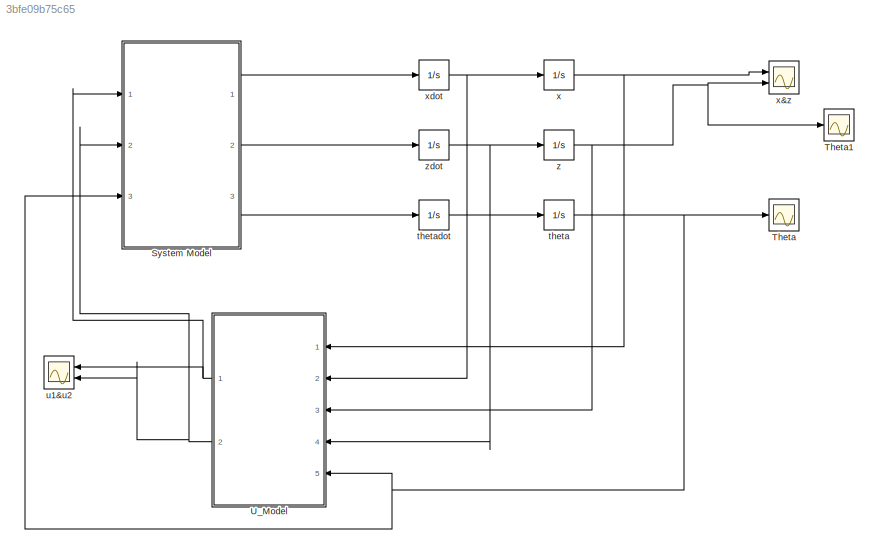
MODEL slx_3bfe09b75c65
KIND model
CONFIG AbsTol = auto
CONFIG EnableMultiTasking = off
CONFIG FixedStep = auto
CONFIG MaxStep = auto
CONFIG MinStep = auto
CONFIG RelTol = 1e-3
CONFIG SampleTimeConstraint = Unconstrained
CONFIG Solver = VariableStepAuto
CONFIG SolverName = VariableStepAuto
CONFIG StartTime = 0.0
CONFIG StopTime = 10.0
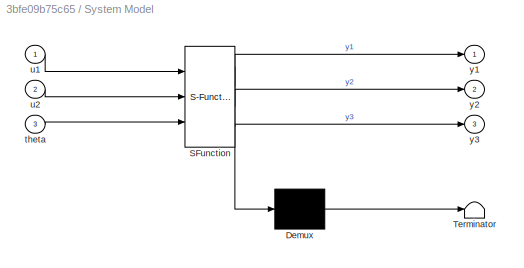
BLOCK [SubSystem] System Model
  ErrorFcn = Stateflow.Translate.translate
  PermitHierarchicalResolution = ExplicitOnly
  Ports = [3, 3]
  RequestExecContextInheritance = off
  SFBlockType = MATLAB Function
  TreatAsAtomicUnit = on
  Variant = off
BLOCK [Demux] System Model/ Demux 
  Outputs = 1
  Ports = [1, 1]
BLOCK [S-Function] System Model/ SFunction 
  EnableBusSupport = on
  FunctionName = sf_sfun
  PortCounts = [3 4]
  Ports = [3, 4]
  SFcnIsStateOwnerBlock = off
  SFunctionDeploymentMode = off
  Tag = Stateflow S-Function NOLCOLab2Q1 2
BLOCK [Terminator] System Model/ Terminator 
BLOCK [Inport] System Model/theta
  IconDisplay = Port number
  Port = 3
BLOCK [Inport] System Model/u1
  IconDisplay = Port number
BLOCK [Inport] System Model/u2
  IconDisplay = Port number
  Port = 2
BLOCK [Outport] System Model/y1
  IconDisplay = Port number
BLOCK [Outport] System Model/y2
  IconDisplay = Port number
  Port = 2
BLOCK [Outport] System Model/y3
  IconDisplay = Port number
  Port = 3
BLOCK [Scope] Theta
  NumInputPorts = 1
  Ports = [1]
  ScopeSpecificationString = Simulink.scopes.TimeScopeBlockCfg('CurrentConfiguration', extmgr.ConfigurationSet(extmgr.Configuration('Core','General UI',true),extmgr.Configuration('Core','Source UI',true),extmgr.Configuration('Sources','WiredSimulink',true,'DataLoggingVariableName','ScopeData2'),extmgr.Configuration('Visuals','Time Domain',true,'SerializedDisplays',{struct('MinYLimReal','-371.96106','MaxYLimReal','112.76702','...<+1424ch>
BLOCK [Scope] Theta1
  NumInputPorts = 1
  Ports = [1]
  ScopeSpecificationString = Simulink.scopes.TimeScopeBlockCfg('CurrentConfiguration', extmgr.ConfigurationSet(extmgr.Configuration('Core','General UI',true),extmgr.Configuration('Core','Source UI',true),extmgr.Configuration('Sources','WiredSimulink',true,'DataLoggingVariableName','ScopeData1'),extmgr.Configuration('Visuals','Time Domain',true,'SerializedDisplays',{struct('MinYLimReal','-5','MaxYLimReal','5','YLabelReal','','...<+1355ch>
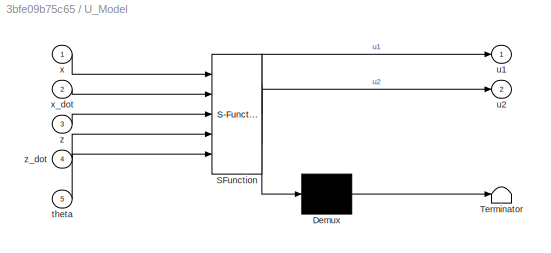
BLOCK [SubSystem] U_Model 
  ErrorFcn = Stateflow.Translate.translate
  PermitHierarchicalResolution = ExplicitOnly
  Ports = [5, 2]
  RequestExecContextInheritance = off
  SFBlockType = MATLAB Function
  TreatAsAtomicUnit = on
  Variant = off
BLOCK [Demux] U_Model / Demux 
  Outputs = 1
  Ports = [1, 1]
BLOCK [S-Function] U_Model / SFunction 
  EnableBusSupport = on
  FunctionName = sf_sfun
  PortCounts = [5 3]
  Ports = [5, 3]
  SFcnIsStateOwnerBlock = off
  SFunctionDeploymentMode = off
  Tag = Stateflow S-Function NOLCOLab2Q1 1
BLOCK [Terminator] U_Model / Terminator 
BLOCK [Inport] U_Model /theta
  IconDisplay = Port number
  Port = 5
BLOCK [Outport] U_Model /u1
  IconDisplay = Port number
BLOCK [Outport] U_Model /u2
  IconDisplay = Port number
  Port = 2
BLOCK [Inport] U_Model /x
  IconDisplay = Port number
BLOCK [Inport] U_Model /x_dot
  IconDisplay = Port number
  Port = 2
BLOCK [Inport] U_Model /z
  IconDisplay = Port number
  Port = 3
BLOCK [Inport] U_Model /z_dot
  IconDisplay = Port number
  Port = 4
BLOCK [Integrator] theta
  InitialCondition = pi/4
  Ports = [1, 1]
BLOCK [Integrator] thetadot
  Ports = [1, 1]
BLOCK [Scope] u1&u2
  NumInputPorts = 2
  Ports = [2]
  ScopeSpecificationString = Simulink.scopes.TimeScopeBlockCfg('CurrentConfiguration', extmgr.ConfigurationSet(extmgr.Configuration('Core','General UI',true),extmgr.Configuration('Core','Source UI',true),extmgr.Configuration('Sources','WiredSimulink',true,'DataLoggingVariableName','ScopeData1'),extmgr.Configuration('Visuals','Time Domain',true,'SerializedDisplays',{struct('MinYLimReal','-42562.42185','MaxYLimReal','36579.4738...<+1515ch>
BLOCK [Integrator] x
  InitialCondition = 1
  Ports = [1, 1]
BLOCK [Scope] x&z
  NumInputPorts = 2
  Ports = [2]
  ScopeSpecificationString = Simulink.scopes.TimeScopeBlockCfg('CurrentConfiguration', extmgr.ConfigurationSet(extmgr.Configuration('Core','General UI',true,'FigureColor',[0 0 0]),extmgr.Configuration('Core','Source UI',true),extmgr.Configuration('Sources','WiredSimulink',true),extmgr.Configuration('Visuals','Time Domain',true,'SerializedDisplays',{struct('MinYLimReal','-3.06699','MaxYLimReal','2.93301','YLabelReal','','MinYL...<+1640ch>
BLOCK [Integrator] xdot
  Ports = [1, 1]
BLOCK [Integrator] z
  InitialCondition = 1
  Ports = [1, 1]
BLOCK [Integrator] zdot
  Ports = [1, 1]
LINE System Model:1 -> xdot:1
LINE System Model:2 -> zdot:1
LINE System Model:3 -> thetadot:1
NET U_Model :1 -> System Model:1, u1&u2:1
NET U_Model :2 -> System Model:2, u1&u2:2
NET theta:1 -> System Model:3, Theta:1, U_Model :5
LINE thetadot:1 -> theta:1
NET x:1 -> U_Model :1, x&z:1
NET xdot:1 -> U_Model :2, x:1
NET z:1 -> Theta1:1, U_Model :3, x&z:2
NET zdot:1 -> U_Model :4, z:1
note: NET lines group one-source signal fan-out (src -> all destinations, sorted); 1:1 wires keep LINE
CHART U_Model  states=1 transitions=1
  STATE_LABEL 'eML_blk_kernel()'
  STATE_LABEL 'SCRIPT:\nfunction [u1,u2]= fcn(x,x_dot,z,z_dot,theta)\neps = 0.001;\n% a is decouple matrix \na = [-sin(theta) eps*cos(theta); cos(theta) eps*sin(theta)];\n% b = Gain(output) Matrix + alpha (constants) \nb = [0;1]+[-10*x_dot-25*x; -10*z_dot-25*z];\nu = (a^-1)*b; \nu1 = u(1);\nu2 = u(2);\n\nend'
CHART System Model states=1 transitions=1
  STATE_LABEL 'eML_blk_kernel()'
  STATE_LABEL 'SCRIPT:\nfunction [y1,y2,y3]= fcn(u1,u2,theta)\neps = 0.001;\nx_ddot = -sin(theta)*u1 + eps*cos(theta)*u2;\nz_ddot = cos(theta)*u1 + eps*sin(theta)*u2 - 1;\ntheta_ddot = u2;\ny1 = x_ddot;\ny2 = z_ddot;\ny3 = theta_ddot;\n\n'
